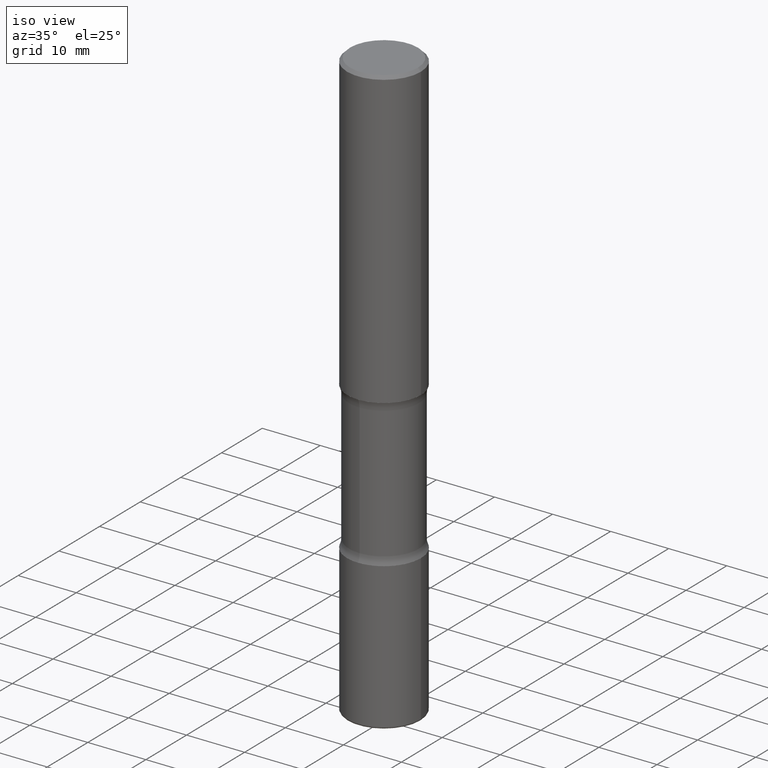
[diagram: clean part render]
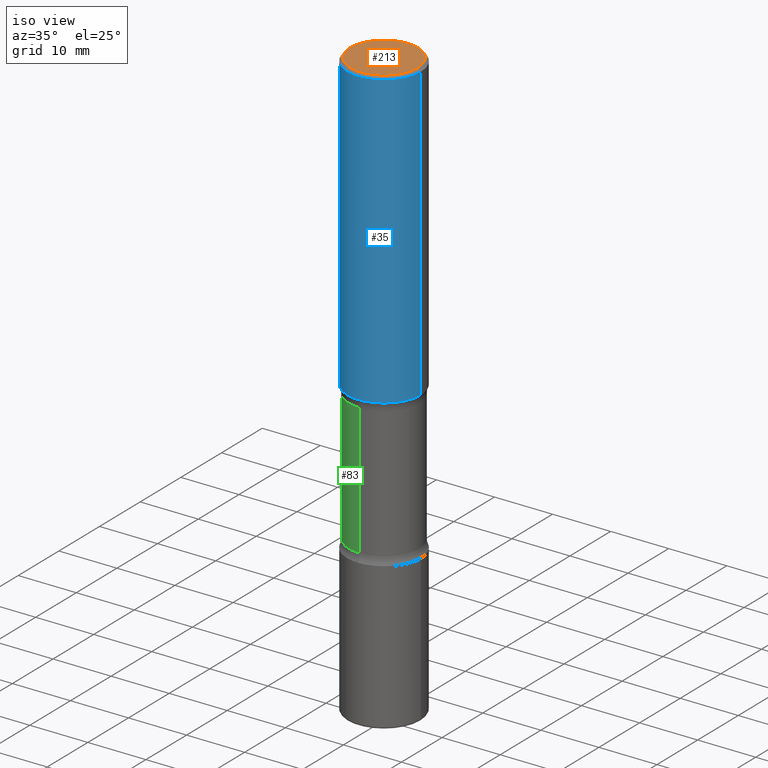
[diagram: same view with three faces highlighted in distinct colors, each labeled with its STEP entity id]
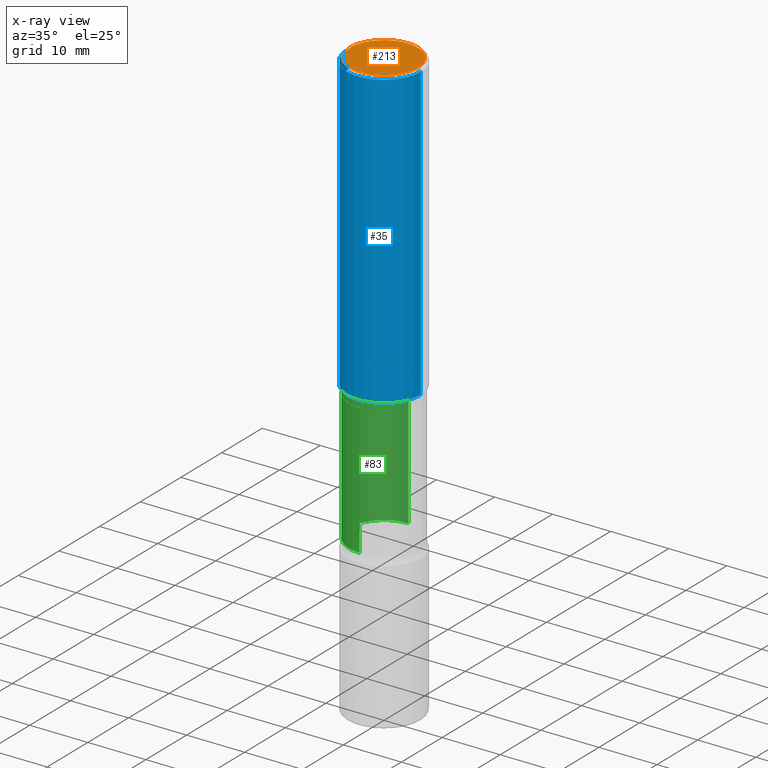
[diagram: x-ray of the same camera — body ghosted, the three highlighted faces saturated]
A machine part, iso view with three faces highlighted in distinct colors.
The next image is the same camera in x-ray (body ghosted, the three faces saturated) — at least one of them is partly hidden behind the body in this view.
Their STEP definitions:

[orange] entity #213 — the highlighted planar face has unit normal (0, -0, -1).
#13 = DIRECTION ( 'NONE',  ( 1.000000000000000000, -6.982962677686267499E-15, 4.876176775795936353E-29 ) ) ;
#14 = DIRECTION ( 'NONE',  ( -1.000000000000000000, 6.982962677686265922E-15, -4.876176775795935793E-29 ) ) ;
#126 = DIRECTION ( 'NONE',  ( -2.445468806185136597E-29, 3.491481338843145583E-15, 1.000000000000000000 ) ) ;
#164 = CARTESIAN_POINT ( 'NONE',  ( 0.2299999999999998990, -1.681434332853598617E-15, 1.149527484987432660E-29 ) ) ;
#193 = AXIS2_PLACEMENT_3D ( 'NONE', #201, #451, #14 ) ;
#201 = CARTESIAN_POINT ( 'NONE',  ( 1.606081415867840476E-15, 0.2299999999999998990, -8.030407079339231961E-16 ) ) ;
#213 = ADVANCED_FACE ( 'NONE', ( #338 ), #292, .F. ) ;
#247 = CIRCLE ( 'NONE', #381, 0.2299999999999998990 ) ;
#252 = EDGE_CURVE ( 'NONE', #500, #278, #441, .T. ) ;
#278 = VERTEX_POINT ( 'NONE', #164 ) ;
#292 = PLANE ( 'NONE',  #193 ) ;
#297 = ORIENTED_EDGE ( 'NONE', *, *, #401, .T. ) ;
#307 = CARTESIAN_POINT ( 'NONE',  ( 0.000000000000000000, 0.000000000000000000, 0.000000000000000000 ) ) ;
#336 = AXIS2_PLACEMENT_3D ( 'NONE', #307, #429, #556 ) ;
#338 = FACE_OUTER_BOUND ( 'NONE', #468, .T. ) ;
#381 = AXIS2_PLACEMENT_3D ( 'NONE', #514, #126, #13 ) ;
#401 = EDGE_CURVE ( 'NONE', #278, #500, #247, .T. ) ;
#429 = DIRECTION ( 'NONE',  ( -2.445468806185136597E-29, 3.491481338843145583E-15, 1.000000000000000000 ) ) ;
#441 = CIRCLE ( 'NONE', #336, 0.2299999999999998990 ) ;
#451 = DIRECTION ( 'NONE',  ( 2.438088387897960049E-29, -3.491481338843145188E-15, -1.000000000000000000 ) ) ;
#468 = EDGE_LOOP ( 'NONE', ( #520, #297 ) ) ;
#475 = CARTESIAN_POINT ( 'NONE',  ( -0.2299999999999998990, 1.640996229256271928E-15, -1.135408596578605420E-29 ) ) ;
#500 = VERTEX_POINT ( 'NONE', #475 ) ;
#514 = CARTESIAN_POINT ( 'NONE',  ( 0.000000000000000000, 0.000000000000000000, 0.000000000000000000 ) ) ;
#520 = ORIENTED_EDGE ( 'NONE', *, *, #252, .T. ) ;
#556 = DIRECTION ( 'NONE',  ( 1.000000000000000000, -6.982962677686267499E-15, 4.876176775795936353E-29 ) ) ;

[blue] entity #35 — the highlighted cylindrical surface (partial cylindrical patch) has radius 6.35 mm, axis along (-0, 0, 1).
#12 = CYLINDRICAL_SURFACE ( 'NONE', #313, 0.2500000000000000555 ) ;
#35 = ADVANCED_FACE ( 'NONE', ( #187 ), #12, .T. ) ;
#41 = ORIENTED_EDGE ( 'NONE', *, *, #243, .F. ) ;
#58 = VECTOR ( 'NONE', #511, 39.37007874015748143 ) ;
#70 = EDGE_CURVE ( 'NONE', #373, #546, #188, .T. ) ;
#92 = DIRECTION ( 'NONE',  ( -2.445468806185136597E-29, 3.491481338843145583E-15, 1.000000000000000000 ) ) ;
#101 = AXIS2_PLACEMENT_3D ( 'NONE', #299, #221, #217 ) ;
#141 = ORIENTED_EDGE ( 'NONE', *, *, #305, .T. ) ;
#144 = CARTESIAN_POINT ( 'NONE',  ( 0.2499999999999999167, -1.784954126219745400E-15, -0.02000000000000006981 ) ) ;
#181 = VERTEX_POINT ( 'NONE', #528 ) ;
#187 = FACE_OUTER_BOUND ( 'NONE', #478, .T. ) ;
#188 = LINE ( 'NONE', #241, #329 ) ;
#217 = DIRECTION ( 'NONE',  ( 1.000000000000000000, -6.982962677686267499E-15, 0.000000000000000000 ) ) ;
#221 = DIRECTION ( 'NONE',  ( -2.445468806185136597E-29, 3.491481338843145583E-15, 1.000000000000000000 ) ) ;
#241 = CARTESIAN_POINT ( 'NONE',  ( -0.2500000000000000555, 1.776356839400250859E-15, -1.229733772563726866E-29 ) ) ;
#243 = EDGE_CURVE ( 'NONE', #546, #460, #422, .T. ) ;
#248 = CARTESIAN_POINT ( 'NONE',  ( -0.2499999999999999167, 1.675911042644703182E-15, -0.02000000000000006981 ) ) ;
#299 = CARTESIAN_POINT ( 'NONE',  ( 4.890937612370289799E-31, -6.982962677686315028E-17, -0.02000000000000006981 ) ) ;
#305 = EDGE_CURVE ( 'NONE', #181, #460, #393, .T. ) ;
#313 = AXIS2_PLACEMENT_3D ( 'NONE', #437, #92, #479 ) ;
#329 = VECTOR ( 'NONE', #361, 39.37007874015748143 ) ;
#361 = DIRECTION ( 'NONE',  ( -2.445468806185136877E-29, 3.491481338843145188E-15, 1.000000000000000000 ) ) ;
#367 = EDGE_CURVE ( 'NONE', #373, #181, #557, .T. ) ;
#373 = VERTEX_POINT ( 'NONE', #404 ) ;
#393 = LINE ( 'NONE', #426, #58 ) ;
#404 = CARTESIAN_POINT ( 'NONE',  ( -0.2500000000000001665, -1.750039312831323809E-15, -2.000000000000000000 ) ) ;
#422 = CIRCLE ( 'NONE', #101, 0.2499999999999999167 ) ;
#426 = CARTESIAN_POINT ( 'NONE',  ( 0.2500000000000000555, -1.745740669421567269E-15, 1.219044193948984228E-29 ) ) ;
#428 = AXIS2_PLACEMENT_3D ( 'NONE', #504, #549, #431 ) ;
#431 = DIRECTION ( 'NONE',  ( 1.000000000000000000, -6.982962677686265922E-15, 0.000000000000000000 ) ) ;
#437 = CARTESIAN_POINT ( 'NONE',  ( 0.000000000000000000, 0.000000000000000000, 0.000000000000000000 ) ) ;
#453 = ORIENTED_EDGE ( 'NONE', *, *, #70, .F. ) ;
#460 = VERTEX_POINT ( 'NONE', #144 ) ;
#478 = EDGE_LOOP ( 'NONE', ( #453, #551, #141, #41 ) ) ;
#479 = DIRECTION ( 'NONE',  ( 1.000000000000000000, -6.982962677686267499E-15, 4.876176775795935793E-29 ) ) ;
#504 = CARTESIAN_POINT ( 'NONE',  ( 4.890937612370273194E-29, -6.982962677686291165E-15, -2.000000000000000000 ) ) ;
#511 = DIRECTION ( 'NONE',  ( -2.445468806185136877E-29, 3.491481338843145188E-15, 1.000000000000000000 ) ) ;
#528 = CARTESIAN_POINT ( 'NONE',  ( 0.2500000000000001665, -8.728703347107858632E-15, -2.000000000000000000 ) ) ;
#546 = VERTEX_POINT ( 'NONE', #248 ) ;
#549 = DIRECTION ( 'NONE',  ( -2.445468806185136597E-29, 3.491481338843145583E-15, 1.000000000000000000 ) ) ;
#551 = ORIENTED_EDGE ( 'NONE', *, *, #367, .T. ) ;
#557 = CIRCLE ( 'NONE', #428, 0.2500000000000001665 ) ;

[green] entity #83 — the highlighted cylindrical surface (partial cylindrical patch) has radius 6.0325 mm, axis along (0, -0, -1).
#9 = CARTESIAN_POINT ( 'NONE',  ( -1.672246386956763723E-15, -0.2375000000000074274, -2.054486236794258236 ) ) ;
#44 = EDGE_CURVE ( 'NONE', #61, #105, #279, .T. ) ;
#53 = EDGE_LOOP ( 'NONE', ( #306, #60, #295, #482 ) ) ;
#60 = ORIENTED_EDGE ( 'NONE', *, *, #44, .T. ) ;
#61 = VERTEX_POINT ( 'NONE', #9 ) ;
#62 = VERTEX_POINT ( 'NONE', #405 ) ;
#77 = VECTOR ( 'NONE', #362, 39.37007874015748143 ) ;
#82 = CARTESIAN_POINT ( 'NONE',  ( 4.943898765775623630E-29, -7.288170524422749615E-15, -2.054486236794258680 ) ) ;
#83 = ADVANCED_FACE ( 'NONE', ( #183 ), #411, .T. ) ;
#97 = CARTESIAN_POINT ( 'NONE',  ( 1.658453635950538436E-15, 0.2374999999999928557, -2.054486236794259568 ) ) ;
#105 = VERTEX_POINT ( 'NONE', #97 ) ;
#132 = EDGE_CURVE ( 'NONE', #359, #62, #544, .T. ) ;
#136 = AXIS2_PLACEMENT_3D ( 'NONE', #435, #232, #318 ) ;
#170 = LINE ( 'NONE', #353, #255 ) ;
#178 = LINE ( 'NONE', #512, #77 ) ;
#183 = FACE_OUTER_BOUND ( 'NONE', #53, .T. ) ;
#190 = DIRECTION ( 'NONE',  ( 2.530378452311521502E-29, -3.369885892833230986E-15, -1.000000000000000000 ) ) ;
#230 = DIRECTION ( 'NONE',  ( 2.530378452311521502E-29, -3.369885892833230986E-15, -1.000000000000000000 ) ) ;
#232 = DIRECTION ( 'NONE',  ( 2.530378452311521502E-29, -3.369885892833230986E-15, -1.000000000000000000 ) ) ;
#239 = AXIS2_PLACEMENT_3D ( 'NONE', #82, #230, #410 ) ;
#255 = VECTOR ( 'NONE', #507, 39.37007874015748143 ) ;
#279 = CIRCLE ( 'NONE', #239, 0.2375000000000001277 ) ;
#295 = ORIENTED_EDGE ( 'NONE', *, *, #340, .T. ) ;
#306 = ORIENTED_EDGE ( 'NONE', *, *, #400, .F. ) ;
#318 = DIRECTION ( 'NONE',  ( 6.982962677686265133E-15, 1.000000000000000000, -2.300503573612010239E-15 ) ) ;
#340 = EDGE_CURVE ( 'NONE', #105, #62, #170, .T. ) ;
#343 = CARTESIAN_POINT ( 'NONE',  ( -1.672246386956739071E-15, -0.2375000000000103417, -2.945513763205740876 ) ) ;
#353 = CARTESIAN_POINT ( 'NONE',  ( 1.658453635950587543E-15, 0.2374999999999862776, -4.000000000000000888 ) ) ;
#354 = AXIS2_PLACEMENT_3D ( 'NONE', #365, #190, #526 ) ;
#359 = VERTEX_POINT ( 'NONE', #343 ) ;
#362 = DIRECTION ( 'NONE',  ( 2.530378452311521502E-29, -3.369885892833230592E-15, -1.000000000000000000 ) ) ;
#365 = CARTESIAN_POINT ( 'NONE',  ( 9.866784870866931853E-29, -1.384432990936266734E-14, -4.000000000000000000 ) ) ;
#400 = EDGE_CURVE ( 'NONE', #61, #359, #178, .T. ) ;
#405 = CARTESIAN_POINT ( 'NONE',  ( 1.658453635950560525E-15, 0.2374999999999897748, -2.945513763205741764 ) ) ;
#410 = DIRECTION ( 'NONE',  ( 6.982962677686265133E-15, 1.000000000000000000, -3.450755360418014766E-15 ) ) ;
#411 = CYLINDRICAL_SURFACE ( 'NONE', #354, 0.2375000000000000999 ) ;
#435 = CARTESIAN_POINT ( 'NONE',  ( 7.198535619023675570E-29, -1.029083161580289368E-14, -2.945513763205741320 ) ) ;
#482 = ORIENTED_EDGE ( 'NONE', *, *, #132, .F. ) ;
#507 = DIRECTION ( 'NONE',  ( 2.530378452311521502E-29, -3.369885892833230592E-15, -1.000000000000000000 ) ) ;
#512 = CARTESIAN_POINT ( 'NONE',  ( -1.629368274470640415E-15, -0.2375000000000139222, -3.999999999999999556 ) ) ;
#526 = DIRECTION ( 'NONE',  ( 6.982962677686265133E-15, 1.000000000000000000, -2.300503573612010239E-15 ) ) ;
#544 = CIRCLE ( 'NONE', #136, 0.2375000000000000722 ) ;